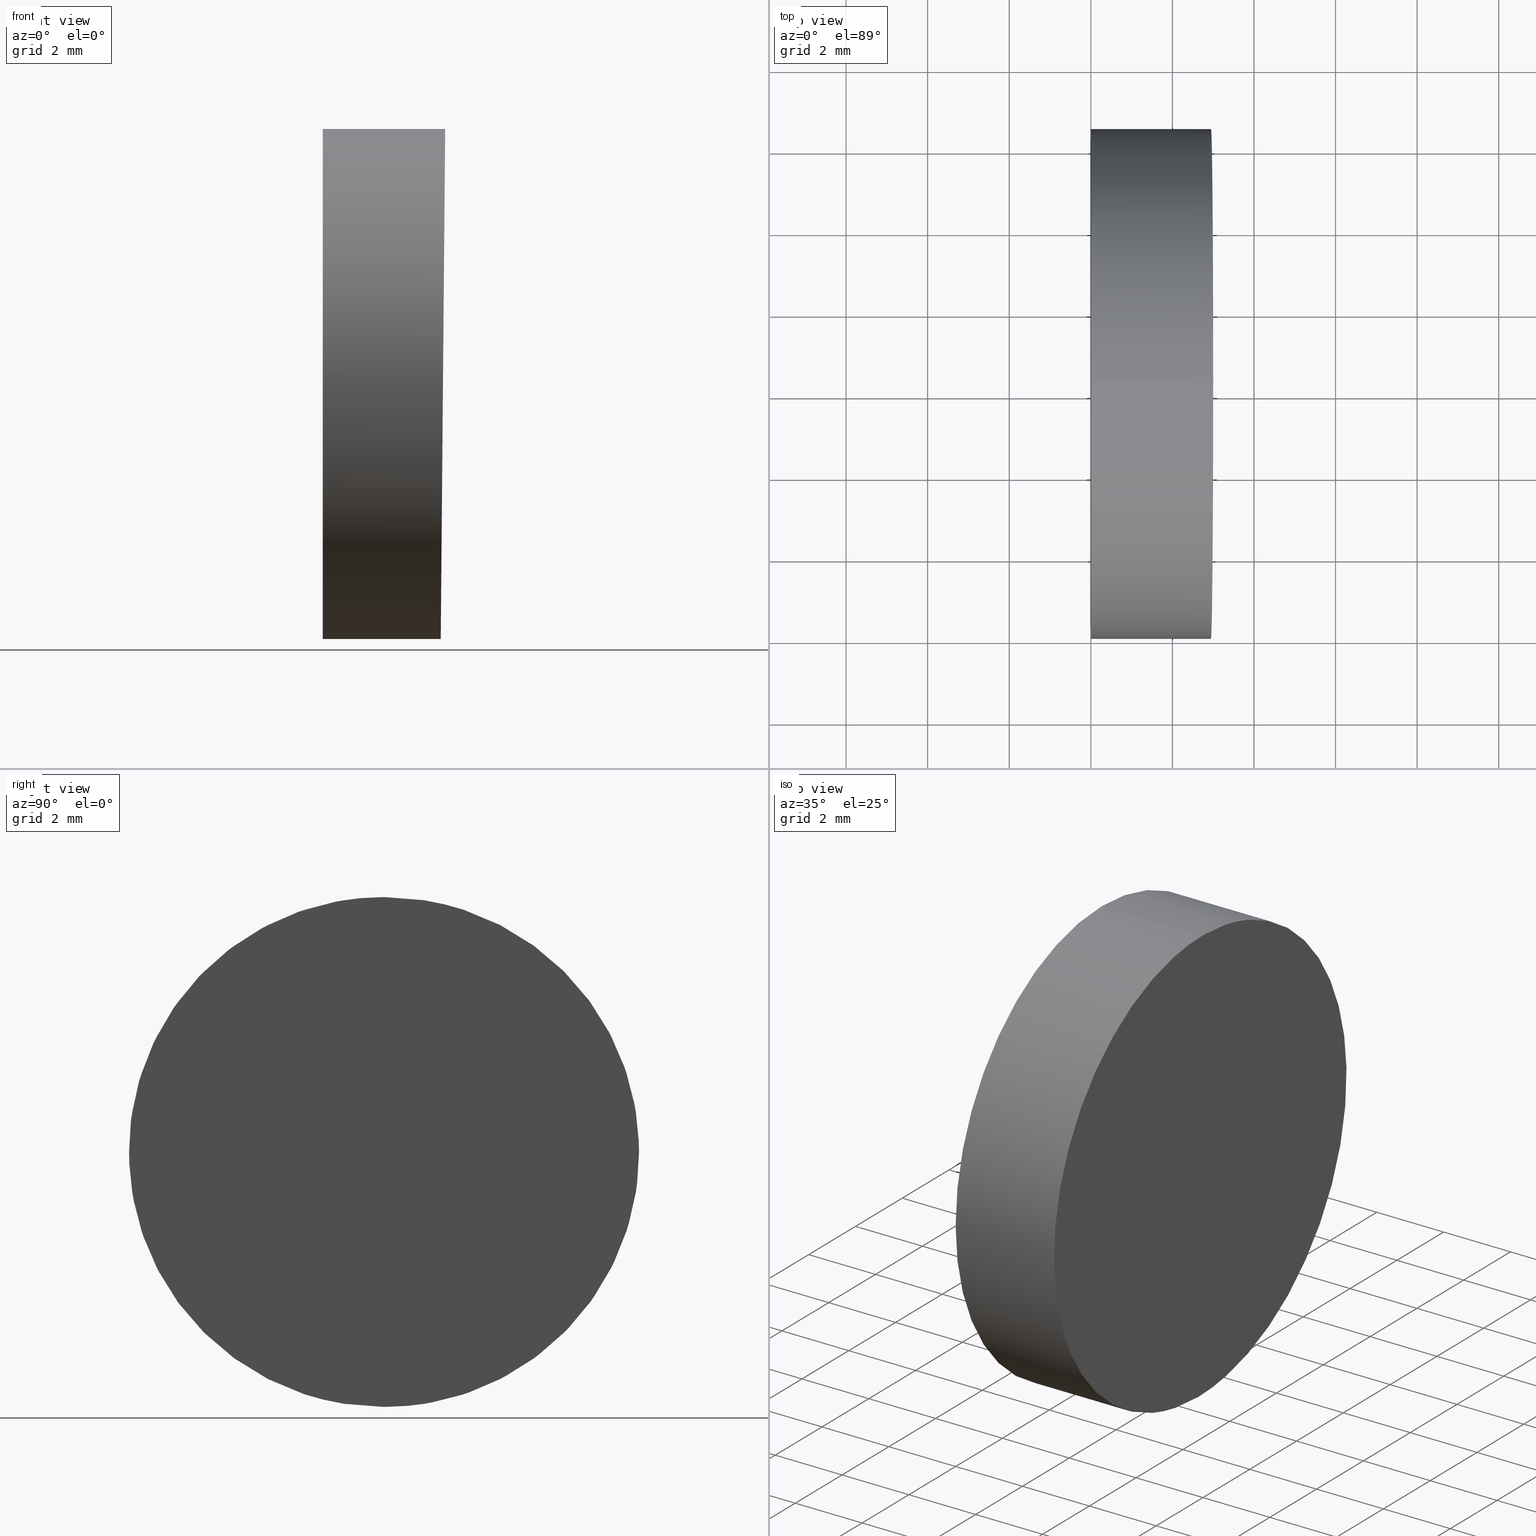
[diagram: canonical four-view strip — front | top / right | iso, engineering-drawing reading convention]
A machine part, canonical four-view strip (front | top / right | iso — engineering-drawing reading convention). The complete STEP part file that produces these views, byte-faithful:
ISO-10303-21;
HEADER;
FILE_DESCRIPTION (( 'STEP AP214' ),
    '1' );
FILE_NAME ('349500.STEP',
    '2019-08-13T01:46:39',
    ( 'user' ),
    ( '΢���й�' ),
    'SwSTEP 2.0',
    'SolidWorks 2016',
    '' );
FILE_SCHEMA (( 'AUTOMOTIVE_DESIGN' ));
ENDSEC;

DATA;
#1 = EDGE_CURVE ( 'NONE', #65, #116, #7, .T. ) ;
#2 = SURFACE_STYLE_USAGE ( .BOTH. , #17 ) ;
#3 = CARTESIAN_POINT ( 'NONE',  ( 2.890914152615603700, 6.250000000000000900, -6.250000000000000000 ) ) ;
#4 = FILL_AREA_STYLE_COLOUR ( '', #21 ) ;
#5 = PRESENTATION_LAYER_ASSIGNMENT (  '', '', ( #135 ) ) ;
#6 = COLOUR_RGB ( '',1.000000000000000000, 1.000000000000000000, 1.000000000000000000 ) ;
#7 = CIRCLE ( 'NONE', #8, 6.250000000000000000 ) ;
#8 = AXIS2_PLACEMENT_3D ( 'NONE', #32, #99, #16 ) ;
#9 = STYLED_ITEM ( 'NONE', ( #40 ), #94 ) ;
#10 = CARTESIAN_POINT ( 'NONE',  ( 3.000000000000002700, 6.250000000000000000, 6.250000000000000000 ) ) ;
#11 = DIRECTION ( 'NONE',  ( -1.000000000000000000, -0.0000000000000000000, -0.0000000000000000000 ) ) ;
#12 = MECHANICAL_DESIGN_GEOMETRIC_PRESENTATION_REPRESENTATION (  '', ( #135 ), #25 ) ;
#13 = CARTESIAN_POINT ( 'NONE',  ( 2.890914152615603700, 6.250000000000000900, -6.250000000000000000 ) ) ;
#14 =( LENGTH_UNIT ( ) NAMED_UNIT ( * ) SI_UNIT ( .MILLI., .METRE. ) );
#15 = ORIENTED_EDGE ( 'NONE', *, *, #124, .T. ) ;
#16 = DIRECTION ( 'NONE',  ( 0.0000000000000000000, 0.0000000000000000000, 1.000000000000000000 ) ) ;
#17 = SURFACE_SIDE_STYLE ('',( #45 ) ) ;
#18 = CARTESIAN_POINT ( 'NONE',  ( 12.50000000000000000, 6.250000000000000000, 0.0000000000000000000 ) ) ;
#19 = PRODUCT_DEFINITION_CONTEXT ( 'detailed design', #90, 'design' ) ;
#20 = EDGE_CURVE ( 'NONE', #116, #65, #74, .T. ) ;
#21 = COLOUR_RGB ( '',1.000000000000000000, 1.000000000000000000, 1.000000000000000000 ) ;
#22 = AXIS2_PLACEMENT_3D ( 'NONE', #78, #11, #130 ) ;
#23 = FACE_OUTER_BOUND ( 'NONE', #60, .T. ) ;
#24 =( NAMED_UNIT ( * ) PLANE_ANGLE_UNIT ( ) SI_UNIT ( $, .RADIAN. ) );
#25 =( GEOMETRIC_REPRESENTATION_CONTEXT ( 3 ) GLOBAL_UNCERTAINTY_ASSIGNED_CONTEXT ( ( #68 ) ) GLOBAL_UNIT_ASSIGNED_CONTEXT ( ( #53, #122, #61 ) ) REPRESENTATION_CONTEXT ( 'NONE', 'WORKASPACE' ) );
#26 = ADVANCED_FACE ( 'NONE', ( #118 ), #107, .F. ) ;
#27 =( NAMED_UNIT ( * ) SI_UNIT ( $, .STERADIAN. ) SOLID_ANGLE_UNIT ( ) );
#28 =( NAMED_UNIT ( * ) SI_UNIT ( $, .STERADIAN. ) SOLID_ANGLE_UNIT ( ) );
#29 = CARTESIAN_POINT ( 'NONE',  ( 1.734723475976807100E-015, 12.50000000000000000, -6.250000000000000000 ) ) ;
#30 = CYLINDRICAL_SURFACE ( 'NONE', #22, 6.250000000000000000 ) ;
#31 = ORIENTED_EDGE ( 'NONE', *, *, #20, .T. ) ;
#32 = CARTESIAN_POINT ( 'NONE',  ( 0.0000000000000000000, 6.250000000000000000, 0.0000000000000000000 ) ) ;
#33 = CARTESIAN_POINT ( 'NONE',  ( 3.000000000000002700, 6.250000000000000000, 6.250000000000000000 ) ) ;
#34 = AXIS2_PLACEMENT_3D ( 'NONE', #73, #84, #129 ) ;
#35 = UNCERTAINTY_MEASURE_WITH_UNIT (LENGTH_MEASURE( 1.000000000000000100E-005 ), #14, 'distance_accuracy_value', 'NONE');
#36 = CARTESIAN_POINT ( 'NONE',  ( 0.0000000000000000000, 6.250000000000000000, 6.250000000000000000 ) ) ;
#37 = PRODUCT_DEFINITION_SHAPE ( 'NONE', 'NONE',  #57 ) ;
#38 = SHAPE_DEFINITION_REPRESENTATION ( #37, #103 ) ;
#39 = CLOSED_SHELL ( 'NONE', ( #119, #26, #67, #76 ) ) ;
#40 = PRESENTATION_STYLE_ASSIGNMENT (( #44 ) ) ;
#41 = PRESENTATION_STYLE_ASSIGNMENT (( #2 ) ) ;
#42 = VERTEX_POINT ( 'NONE', #140 ) ;
#43 = APPLICATION_PROTOCOL_DEFINITION ( 'draft international standard', 'automotive_design', 1998, #95 ) ;
#44 = SURFACE_STYLE_USAGE ( .BOTH. , #101 ) ;
#45 = SURFACE_STYLE_FILL_AREA ( #49 ) ;
#46 = APPLICATION_PROTOCOL_DEFINITION ( 'draft international standard', 'automotive_design', 1998, #90 ) ;
#47 = CARTESIAN_POINT ( 'NONE',  ( 12.50000000000000000, 6.250000000000000000, 6.250000000000000000 ) ) ;
#48 = ORIENTED_EDGE ( 'NONE', *, *, #20, .F. ) ;
#49 = FILL_AREA_STYLE ('',( #4 ) ) ;
#50 = ORIENTED_EDGE ( 'NONE', *, *, #133, .T. ) ;
#51 = AXIS2_PLACEMENT_3D ( 'NONE', #137, #70, #139 ) ;
#52 = FACE_OUTER_BOUND ( 'NONE', #85, .T. ) ;
#53 =( LENGTH_UNIT ( ) NAMED_UNIT ( * ) SI_UNIT ( .MILLI., .METRE. ) );
#54 = DIRECTION ( 'NONE',  ( 0.0000000000000000000, 0.0000000000000000000, -1.000000000000000000 ) ) ;
#55 = LINE ( 'NONE', #120, #117 ) ;
#56 = VECTOR ( 'NONE', #91, 1000.000000000000000 ) ;
#57 = PRODUCT_DEFINITION ( 'δ֪', '', #63, #19 ) ;
#58 = ORIENTED_EDGE ( 'NONE', *, *, #97, .T. ) ;
#59 =( BOUNDED_CURVE ( )  B_SPLINE_CURVE ( 3, ( #33, #83, #71, #3 ),
 .UNSPECIFIED., .F., .T. ) 
 B_SPLINE_CURVE_WITH_KNOTS ( ( 4, 4 ),
 ( 3.141592653589793100, 6.283185307179586200 ),
 .UNSPECIFIED. ) 
 CURVE ( )  GEOMETRIC_REPRESENTATION_ITEM ( )  RATIONAL_B_SPLINE_CURVE ( ( 1.000000000000000000, 0.3333333333333333700, 0.3333333333333333700, 1.000000000000000000 ) ) 
 REPRESENTATION_ITEM ( '' )  );
#60 = EDGE_LOOP ( 'NONE', ( #100, #50, #48, #115 ) ) ;
#61 =( NAMED_UNIT ( * ) SI_UNIT ( $, .STERADIAN. ) SOLID_ANGLE_UNIT ( ) );
#62 = ORIENTED_EDGE ( 'NONE', *, *, #124, .F. ) ;
#63 = PRODUCT_DEFINITION_FORMATION_WITH_SPECIFIED_SOURCE ( '�κ�', '', #114, .NOT_KNOWN. ) ;
#64 = FILL_AREA_STYLE_COLOUR ( '', #6 ) ;
#65 = VERTEX_POINT ( 'NONE', #125 ) ;
#66 = ORIENTED_EDGE ( 'NONE', *, *, #133, .F. ) ;
#67 = ADVANCED_FACE ( 'NONE', ( #52 ), #89, .F. ) ;
#68 = UNCERTAINTY_MEASURE_WITH_UNIT (LENGTH_MEASURE( 1.000000000000000100E-005 ), #53, 'distance_accuracy_value', 'NONE');
#69 = DIRECTION ( 'NONE',  ( -1.000000000000000000, -0.0000000000000000000, -0.0000000000000000000 ) ) ;
#70 = DIRECTION ( 'NONE',  ( 0.0000000000000000000, 0.0000000000000000000, 1.000000000000000000 ) ) ;
#71 = CARTESIAN_POINT ( 'NONE',  ( 2.890914152615605000, 18.75000000000000000, -6.250000000000000000 ) ) ;
#72 = EDGE_LOOP ( 'NONE', ( #66, #15, #58, #108 ) ) ;
#73 = CARTESIAN_POINT ( 'NONE',  ( 0.0000000000000000000, 6.250000000000000000, 0.0000000000000000000 ) ) ;
#74 = CIRCLE ( 'NONE', #34, 6.250000000000000000 ) ;
#75 =( GEOMETRIC_REPRESENTATION_CONTEXT ( 3 ) GLOBAL_UNCERTAINTY_ASSIGNED_CONTEXT ( ( #35 ) ) GLOBAL_UNIT_ASSIGNED_CONTEXT ( ( #14, #24, #27 ) ) REPRESENTATION_CONTEXT ( 'NONE', 'WORKASPACE' ) );
#76 = ADVANCED_FACE ( 'NONE', ( #102 ), #30, .T. ) ;
#77 = UNCERTAINTY_MEASURE_WITH_UNIT (LENGTH_MEASURE( 1.000000000000000100E-005 ), #79, 'distance_accuracy_value', 'NONE');
#78 = CARTESIAN_POINT ( 'NONE',  ( 12.50000000000000000, 6.250000000000000000, 0.0000000000000000000 ) ) ;
#79 =( LENGTH_UNIT ( ) NAMED_UNIT ( * ) SI_UNIT ( .MILLI., .METRE. ) );
#80 = DIRECTION ( 'NONE',  ( 0.008726535498366981900, 0.0000000000000000000, 0.9999619230641713100 ) ) ;
#81 = PRODUCT_CONTEXT ( 'NONE', #95, 'mechanical' ) ;
#82 = CARTESIAN_POINT ( 'NONE',  ( 2.890914152615603700, 6.250000000000000900, -6.250000000000000000 ) ) ;
#83 = CARTESIAN_POINT ( 'NONE',  ( 3.000000000000003100, 18.75000000000000000, 6.250000000000002700 ) ) ;
#84 = DIRECTION ( 'NONE',  ( -1.000000000000000000, 0.0000000000000000000, 0.0000000000000000000 ) ) ;
#85 = EDGE_LOOP ( 'NONE', ( #123, #62 ) ) ;
#86 = PRODUCT_RELATED_PRODUCT_CATEGORY ( 'part', '', ( #114 ) ) ;
#87 = DIRECTION ( 'NONE',  ( 1.000000000000000000, 0.0000000000000000000, 0.0000000000000000000 ) ) ;
#88 =( NAMED_UNIT ( * ) PLANE_ANGLE_UNIT ( ) SI_UNIT ( $, .RADIAN. ) );
#89 = PLANE ( 'NONE',  #98 ) ;
#90 = APPLICATION_CONTEXT ( 'automotive_design' ) ;
#91 = DIRECTION ( 'NONE',  ( -1.000000000000000000, -0.0000000000000000000, -0.0000000000000000000 ) ) ;
#92 = DIRECTION ( 'NONE',  ( 0.0000000000000000000, 0.0000000000000000000, 1.000000000000000000 ) ) ;
#93 = ORIENTED_EDGE ( 'NONE', *, *, #1, .T. ) ;
#94 = MANIFOLD_SOLID_BREP ( '�г�-����2', #39 ) ;
#95 = APPLICATION_CONTEXT ( 'automotive_design' ) ;
#96 = SURFACE_STYLE_FILL_AREA ( #128 ) ;
#97 = EDGE_CURVE ( 'NONE', #42, #116, #106, .T. ) ;
#98 = AXIS2_PLACEMENT_3D ( 'NONE', #121, #138, #80 ) ;
#99 = DIRECTION ( 'NONE',  ( -1.000000000000000000, 0.0000000000000000000, 0.0000000000000000000 ) ) ;
#100 = ORIENTED_EDGE ( 'NONE', *, *, #109, .T. ) ;
#101 = SURFACE_SIDE_STYLE ('',( #96 ) ) ;
#102 = FACE_OUTER_BOUND ( 'NONE', #72, .T. ) ;
#103 = ADVANCED_BREP_SHAPE_REPRESENTATION ( '349500', ( #94, #51 ), #105 ) ;
#104 = PRESENTATION_LAYER_ASSIGNMENT (  '', '', ( #9 ) ) ;
#105 =( GEOMETRIC_REPRESENTATION_CONTEXT ( 3 ) GLOBAL_UNCERTAINTY_ASSIGNED_CONTEXT ( ( #77 ) ) GLOBAL_UNIT_ASSIGNED_CONTEXT ( ( #79, #88, #28 ) ) REPRESENTATION_CONTEXT ( 'NONE', 'WORKASPACE' ) );
#106 = LINE ( 'NONE', #47, #56 ) ;
#107 = PLANE ( 'NONE',  #134 ) ;
#108 = ORIENTED_EDGE ( 'NONE', *, *, #1, .F. ) ;
#109 = EDGE_CURVE ( 'NONE', #42, #132, #59, .T. ) ;
#110 = MECHANICAL_DESIGN_GEOMETRIC_PRESENTATION_REPRESENTATION (  '', ( #9 ), #75 ) ;
#111 = AXIS2_PLACEMENT_3D ( 'NONE', #18, #126, #92 ) ;
#112 = EDGE_LOOP ( 'NONE', ( #31, #93 ) ) ;
#113 = CARTESIAN_POINT ( 'NONE',  ( 2.890914152615605000, -6.250000000000002700, -6.250000000000000000 ) ) ;
#114 = PRODUCT ( '349500', '349500', '', ( #81 ) ) ;
#115 = ORIENTED_EDGE ( 'NONE', *, *, #97, .F. ) ;
#116 = VERTEX_POINT ( 'NONE', #36 ) ;
#117 = VECTOR ( 'NONE', #69, 1000.000000000000000 ) ;
#118 = FACE_OUTER_BOUND ( 'NONE', #112, .T. ) ;
#119 = ADVANCED_FACE ( 'NONE', ( #23 ), #131, .T. ) ;
#120 = CARTESIAN_POINT ( 'NONE',  ( 12.50000000000000000, 6.250000000000000900, -6.250000000000000000 ) ) ;
#121 = CARTESIAN_POINT ( 'NONE',  ( 3.000000000000001800, 12.50000000000000000, 6.250000000000000000 ) ) ;
#122 =( NAMED_UNIT ( * ) PLANE_ANGLE_UNIT ( ) SI_UNIT ( $, .RADIAN. ) );
#123 = ORIENTED_EDGE ( 'NONE', *, *, #109, .F. ) ;
#124 = EDGE_CURVE ( 'NONE', #132, #42, #136, .T. ) ;
#125 = CARTESIAN_POINT ( 'NONE',  ( 0.0000000000000000000, 6.250000000000000900, -6.250000000000000000 ) ) ;
#126 = DIRECTION ( 'NONE',  ( -1.000000000000000000, -0.0000000000000000000, -0.0000000000000000000 ) ) ;
#127 = CARTESIAN_POINT ( 'NONE',  ( 3.000000000000003100, -6.250000000000002700, 6.250000000000000000 ) ) ;
#128 = FILL_AREA_STYLE ('',( #64 ) ) ;
#129 = DIRECTION ( 'NONE',  ( 0.0000000000000000000, 0.0000000000000000000, 1.000000000000000000 ) ) ;
#130 = DIRECTION ( 'NONE',  ( 0.0000000000000000000, 0.0000000000000000000, 1.000000000000000000 ) ) ;
#131 = CYLINDRICAL_SURFACE ( 'NONE', #111, 6.250000000000000000 ) ;
#132 = VERTEX_POINT ( 'NONE', #82 ) ;
#133 = EDGE_CURVE ( 'NONE', #132, #65, #55, .T. ) ;
#134 = AXIS2_PLACEMENT_3D ( 'NONE', #29, #87, #54 ) ;
#135 = STYLED_ITEM ( 'NONE', ( #41 ), #103 ) ;
#136 =( BOUNDED_CURVE ( )  B_SPLINE_CURVE ( 3, ( #13, #113, #127, #10 ),
 .UNSPECIFIED., .F., .T. ) 
 B_SPLINE_CURVE_WITH_KNOTS ( ( 4, 4 ),
 ( 0.0000000000000000000, 3.141592653589793100 ),
 .UNSPECIFIED. ) 
 CURVE ( )  GEOMETRIC_REPRESENTATION_ITEM ( )  RATIONAL_B_SPLINE_CURVE ( ( 1.000000000000000000, 0.3333333333333333700, 0.3333333333333333700, 1.000000000000000000 ) ) 
 REPRESENTATION_ITEM ( '' )  );
#137 = CARTESIAN_POINT ( 'NONE',  ( 0.0000000000000000000, 0.0000000000000000000, 0.0000000000000000000 ) ) ;
#138 = DIRECTION ( 'NONE',  ( -0.9999619230641714200, 0.0000000000000000000, 0.008726535498366983600 ) ) ;
#139 = DIRECTION ( 'NONE',  ( 1.000000000000000000, 0.0000000000000000000, 0.0000000000000000000 ) ) ;
#140 = CARTESIAN_POINT ( 'NONE',  ( 3.000000000000002700, 6.250000000000000000, 6.250000000000000000 ) ) ;
ENDSEC;
END-ISO-10303-21;
